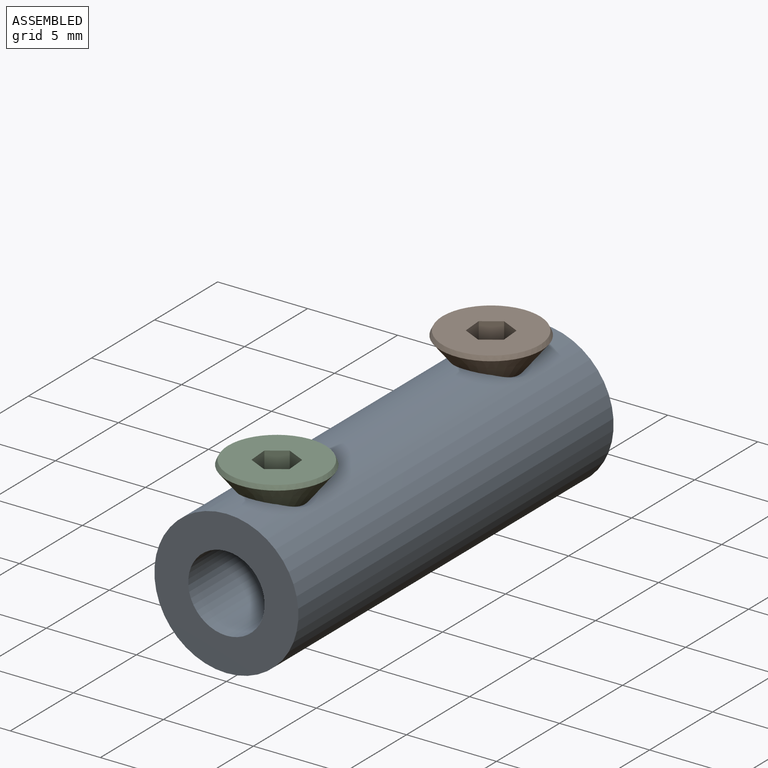
[diagram: assembled view]
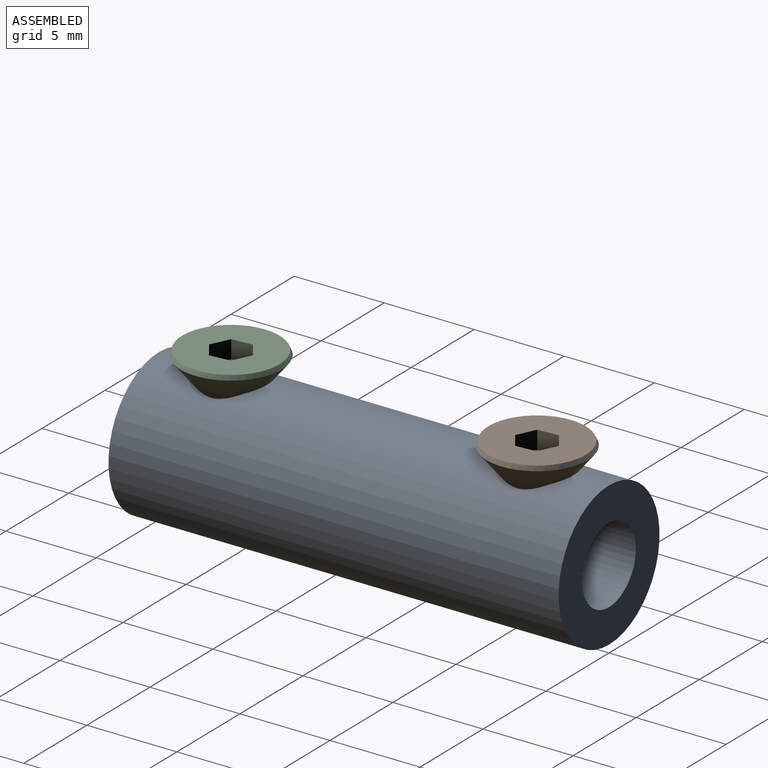
[diagram: assembled view, second angle]
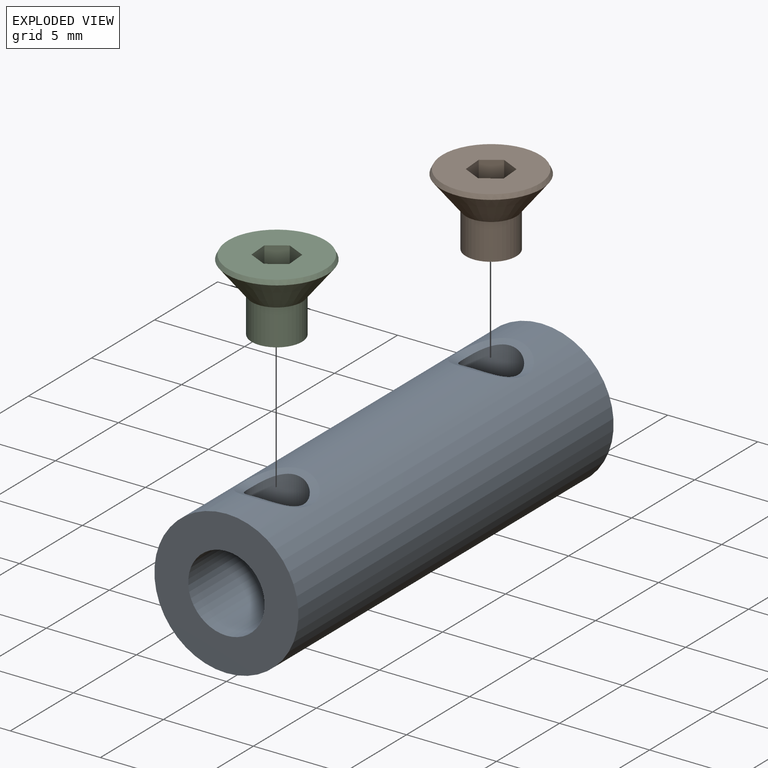
[diagram: exploded view]
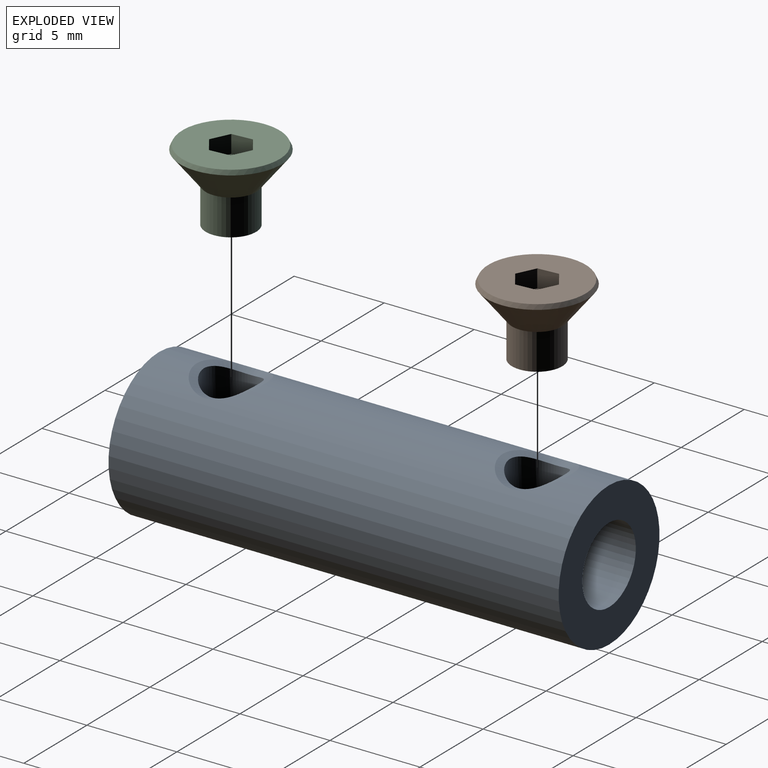
[diagram: exploded view, second angle]
ASSEMBLY  parts=3 mates=2
PART A: 8 faces, bbox 8x25x8 mm
  f0: cylinder r=4mm len=25mm, axis (0,1,0), area 604mm2, adj f1,f2,f6,f7
  f1: plane 8x8mm, normal (0,-1,0), area 36.1mm2, adj f0,f3
  f2: plane 8x8mm, normal (0,1,0), area 36.1mm2, adj f0,f3
  f3: cylinder r=2.12mm len=25mm, axis (0,-1,0), area 317.9mm2, adj f1,f2,f4,f5
  f4: cylinder r=1.5mm len=3mm, axis (0,0,1), area 19.8mm2, adj f3,f6
  f5: cylinder r=1.5mm len=3mm, axis (0,0,1), area 19.8mm2, adj f3,f7
  f6: bspline ~3.95x3.8mm, area 5mm2, adj f0,f4
  f7: bspline ~3.95x3.8mm, area 5mm2, adj f0,f5
PART B: 12 faces, bbox 5.6x5.6x4 mm
  f0: plane 5.4x5.4mm, normal (0,0,1), area 19.4mm2, adj f4,f5,f6,f7,f8,f9,f11
  f1: plane 2.8x2.8mm, normal (0,0,-1), area 6.2mm2, adj f2
  f2: cylinder r=1.4mm len=2.8mm, axis (0,0,-1), area 17.6mm2, adj f1,f3
  f3: cone r=3mm half-angle=38.7deg, axis (0,0,1), area 29.9mm2, adj f2,f11
  f4: plane 1.04x1mm, normal (0.43,0.9,0), area 1.2mm2, adj f0,f5,f9,f10
  f5: plane 1x0.95mm, normal (-0.57,0.82,0), area 1.2mm2, adj f0,f4,f6,f10
  f6: plane 1.15x1mm, normal (-1,-0.08,0), area 1.2mm2, adj f0,f5,f7,f10
  f7: plane 1.04x1mm, normal (-0.43,-0.9,0), area 1.2mm2, adj f0,f6,f8,f10
  f8: plane 1x0.95mm, normal (0.57,-0.82,0), area 1.2mm2, adj f0,f7,f9,f10
  f9: plane 1.15x1mm, normal (1,0.08,0), area 1.2mm2, adj f0,f4,f8,f10
  f10: plane 2.3x2.08mm, normal (0,0,1), area 3.5mm2, adj f4,f5,f6,f7,f8,f9
  f11: cone r=2.81mm half-angle=25.7deg, axis (0,0,-1), area 4.5mm2, adj f0,f3
PART C: same geometry as B
PLACE A at identity
PLACE B t=(0,-4,5.18)mm
PLACE C t=(0,-21,5.18)mm
MATE fastened B.f2 <-> A.f4  axis (0,0,1) through (0,-4,3.18)mm
MATE fastened C.f2 <-> A.f5  axis (0,0,-1) through (0,-21,3.18)mm
